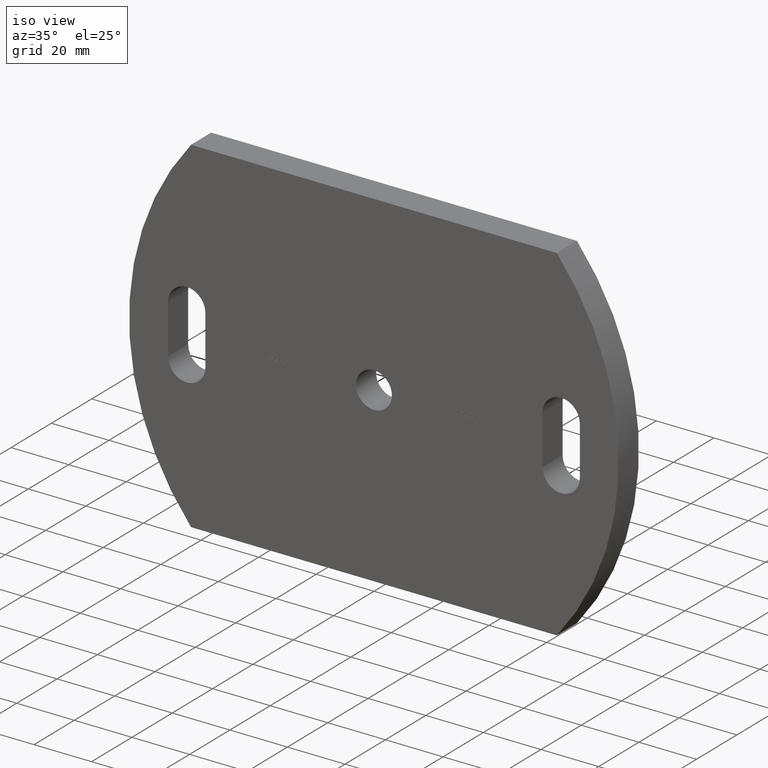
[diagram: clean part render]
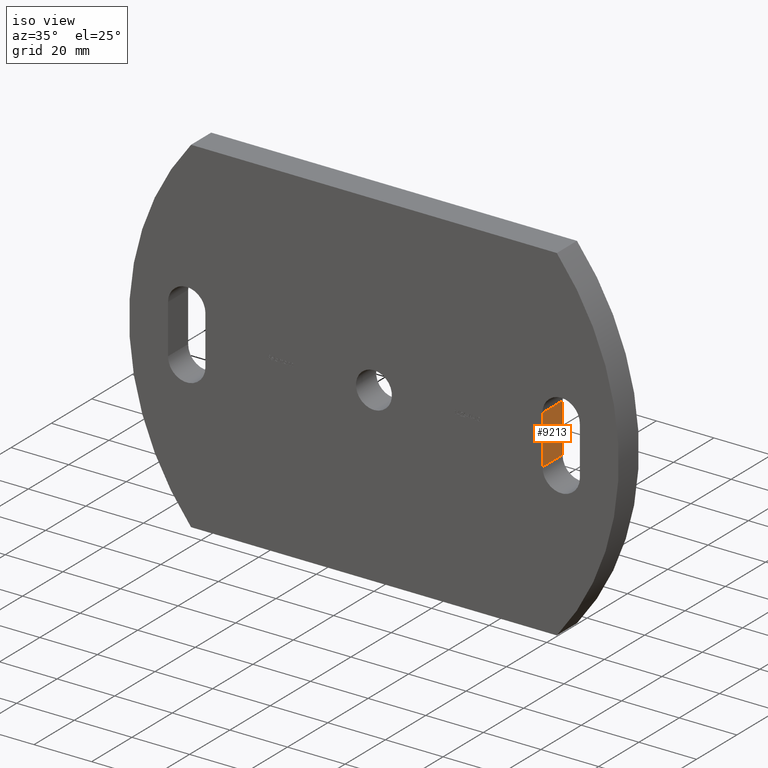
[diagram: same view with one face highlighted and labeled with its STEP entity id]
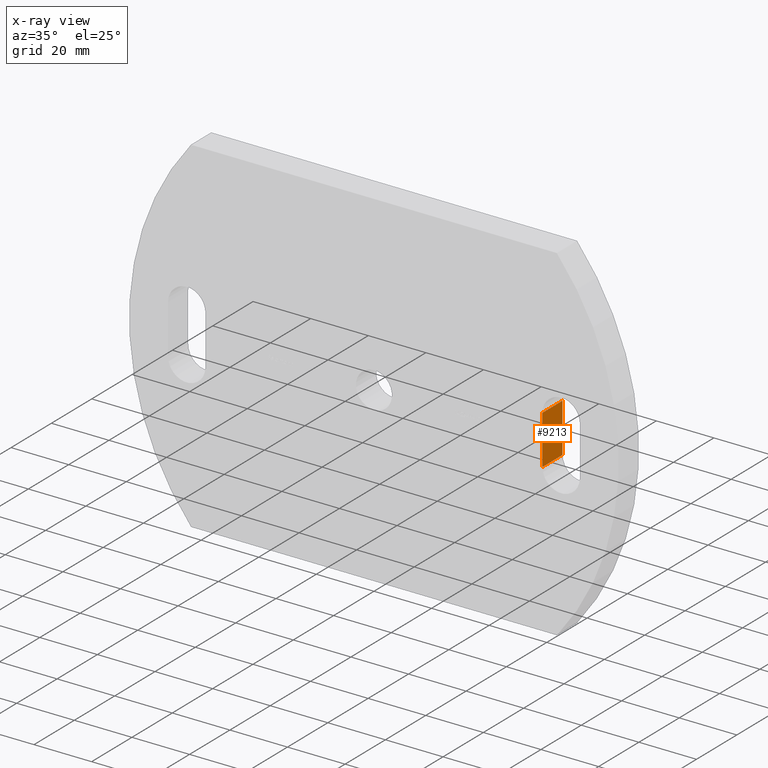
[diagram: x-ray of the same camera — body ghosted, the highlighted face saturated]
A machine part, iso view. The second image highlights one B-rep face of the part: STEP entity #9213.
The next image is the same camera in x-ray: the body ghosted, the highlighted face saturated — about 0% of this face is hidden behind the body in this view.
In plain terms, the highlighted planar face has unit normal (-1, 0, 0).
Its self-contained STEP definition (entity closure, byte-faithful):
#128 = ORIENTED_EDGE ( 'NONE', *, *, #3654, .T. ) ;
#757 = EDGE_CURVE ( 'NONE', #5625, #1996, #6397, .T. ) ;
#902 = FACE_OUTER_BOUND ( 'NONE', #2305, .T. ) ;
#948 = CARTESIAN_POINT ( 'NONE',  ( 58.49999999999998600, 0.0000000000000000000, -8.500000000000008900 ) ) ;
#1333 = CARTESIAN_POINT ( 'NONE',  ( 58.49999999999998600, 10.00000000000000000, -8.500000000000008900 ) ) ;
#1418 = VECTOR ( 'NONE', #5032, 1000.000000000000000 ) ;
#1498 = DIRECTION ( 'NONE',  ( 0.0000000000000000000, 0.0000000000000000000, 1.000000000000000000 ) ) ;
#1996 = VERTEX_POINT ( 'NONE', #9534 ) ;
#2305 = EDGE_LOOP ( 'NONE', ( #128, #6844, #9111, #2602 ) ) ;
#2347 = CARTESIAN_POINT ( 'NONE',  ( 58.50000000000000000, 0.0000000000000000000, 8.500000000000008900 ) ) ;
#2602 = ORIENTED_EDGE ( 'NONE', *, *, #7447, .T. ) ;
#2685 = LINE ( 'NONE', #1333, #4663 ) ;
#3654 = EDGE_CURVE ( 'NONE', #4202, #1996, #2685, .T. ) ;
#3770 = CARTESIAN_POINT ( 'NONE',  ( 58.49999999999998600, 0.0000000000000000000, 8.500000000000008900 ) ) ;
#4202 = VERTEX_POINT ( 'NONE', #6445 ) ;
#4663 = VECTOR ( 'NONE', #8008, 1000.000000000000000 ) ;
#4773 = CARTESIAN_POINT ( 'NONE',  ( 58.49999999999998600, 0.0000000000000000000, -8.500000000000008900 ) ) ;
#4929 = VERTEX_POINT ( 'NONE', #5710 ) ;
#5032 = DIRECTION ( 'NONE',  ( 0.0000000000000000000, 0.0000000000000000000, 1.000000000000000000 ) ) ;
#5620 = LINE ( 'NONE', #4773, #9227 ) ;
#5625 = VERTEX_POINT ( 'NONE', #3770 ) ;
#5710 = CARTESIAN_POINT ( 'NONE',  ( 58.49999999999998600, 0.0000000000000000000, -8.500000000000008900 ) ) ;
#6397 = LINE ( 'NONE', #2347, #10133 ) ;
#6445 = CARTESIAN_POINT ( 'NONE',  ( 58.49999999999998600, 10.00000000000000000, -8.500000000000008900 ) ) ;
#6844 = ORIENTED_EDGE ( 'NONE', *, *, #757, .F. ) ;
#7447 = EDGE_CURVE ( 'NONE', #4929, #4202, #5620, .T. ) ;
#8008 = DIRECTION ( 'NONE',  ( 0.0000000000000000000, 0.0000000000000000000, 1.000000000000000000 ) ) ;
#8130 = DIRECTION ( 'NONE',  ( -0.0000000000000000000, 1.000000000000000000, -0.0000000000000000000 ) ) ;
#8144 = DIRECTION ( 'NONE',  ( -1.000000000000000000, 0.0000000000000000000, 0.0000000000000000000 ) ) ;
#8214 = PLANE ( 'NONE',  #9354 ) ;
#8823 = LINE ( 'NONE', #948, #1418 ) ;
#9025 = CARTESIAN_POINT ( 'NONE',  ( 58.49999999999998600, 0.0000000000000000000, -8.500000000000008900 ) ) ;
#9111 = ORIENTED_EDGE ( 'NONE', *, *, #10436, .F. ) ;
#9213 = ADVANCED_FACE ( 'NONE', ( #902 ), #8214, .F. ) ;
#9227 = VECTOR ( 'NONE', #10572, 1000.000000000000000 ) ;
#9354 = AXIS2_PLACEMENT_3D ( 'NONE', #9025, #8144, #1498 ) ;
#9534 = CARTESIAN_POINT ( 'NONE',  ( 58.50000000000000000, 10.00000000000000000, 8.500000000000008900 ) ) ;
#10133 = VECTOR ( 'NONE', #8130, 1000.000000000000000 ) ;
#10436 = EDGE_CURVE ( 'NONE', #4929, #5625, #8823, .T. ) ;
#10572 = DIRECTION ( 'NONE',  ( -0.0000000000000000000, 1.000000000000000000, -0.0000000000000000000 ) ) ;